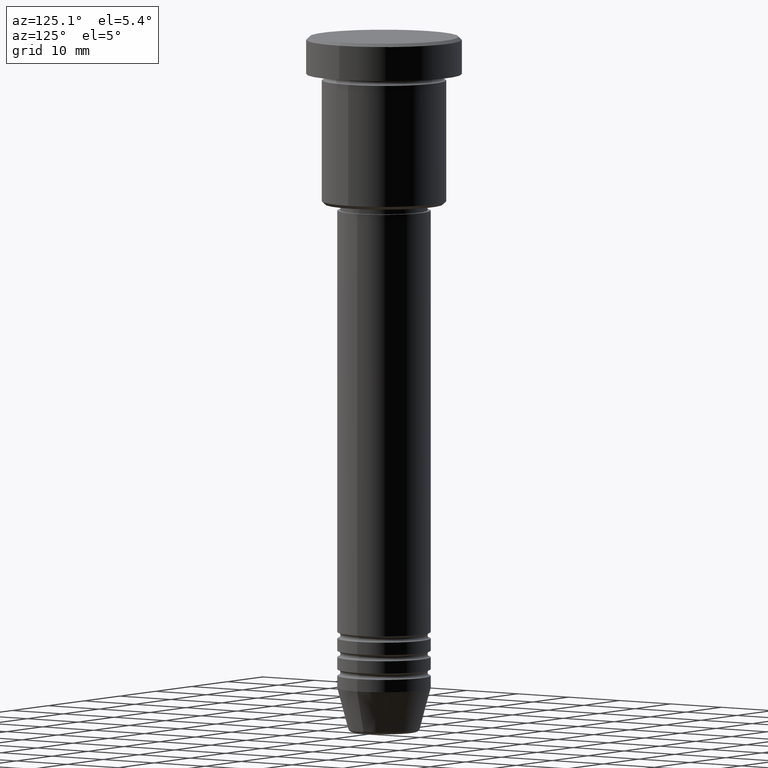
[diagram: clean part render]
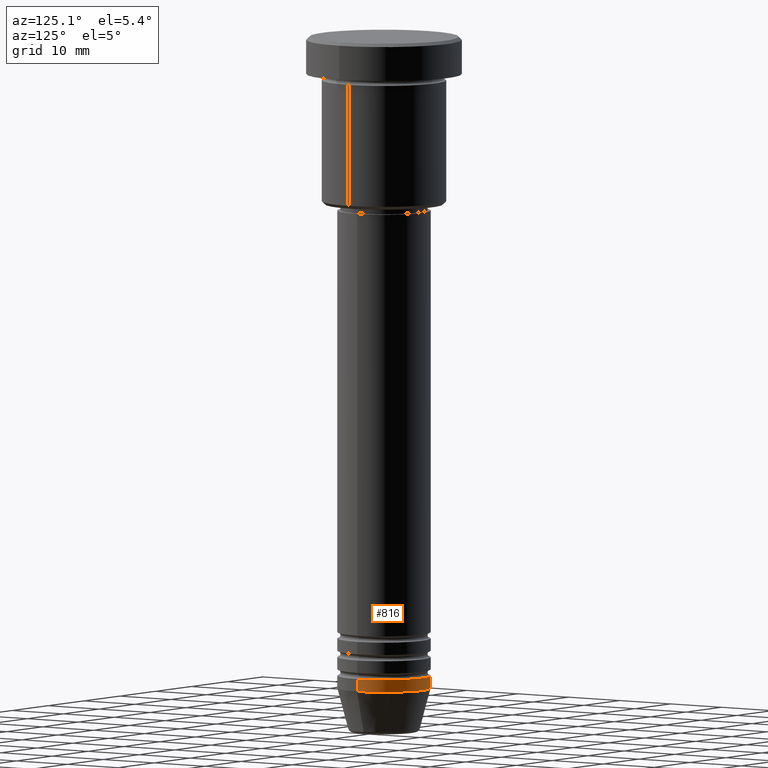
[diagram: same view with one face highlighted and labeled with its STEP entity id]
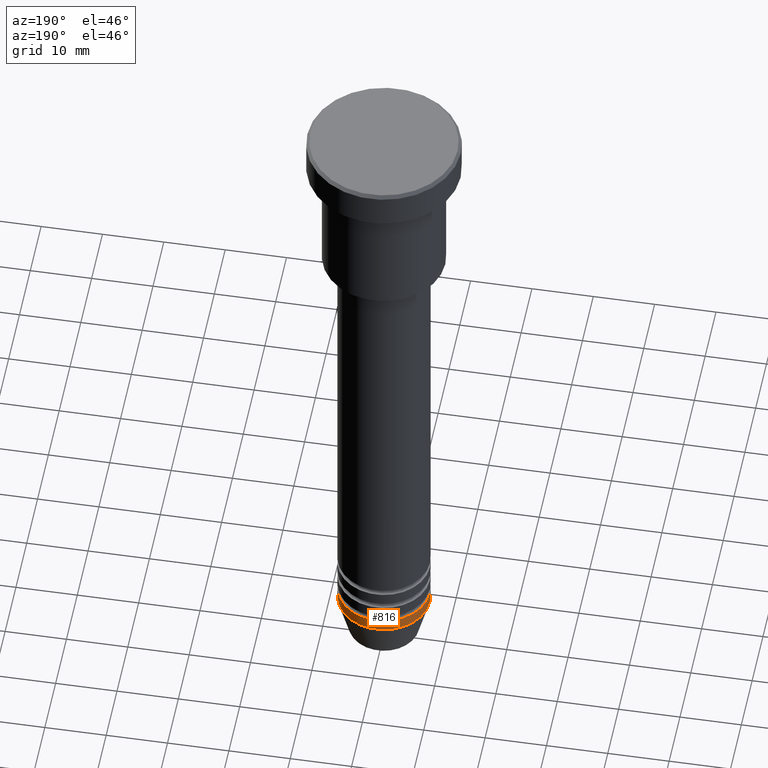
[diagram: same view with one face highlighted and labeled with its STEP entity id]
A machine part, auxiliary view. The second image highlights one B-rep face of the part: STEP entity #816.
A second angle (auxiliary view) of the same face is appended — the face is thin or edge-on in the first view.
In plain terms, the highlighted cylindrical surface (partial cylindrical patch) has radius 7.5 mm, axis along (-0, -0, 1).
Its self-contained STEP definition (entity closure, byte-faithful):
#11 = VECTOR ( 'NONE', #243, 1000.000000000000000 ) ;
#73 = EDGE_CURVE ( 'NONE', #753, #336, #268, .T. ) ;
#131 = LINE ( 'NONE', #762, #558 ) ;
#145 = ORIENTED_EDGE ( 'NONE', *, *, #362, .T. ) ;
#223 = VERTEX_POINT ( 'NONE', #497 ) ;
#243 = DIRECTION ( 'NONE',  ( -0.000000000000000000, -0.000000000000000000, 1.000000000000000000 ) ) ;
#244 = ORIENTED_EDGE ( 'NONE', *, *, #473, .F. ) ;
#268 = CIRCLE ( 'NONE', #1151, 7.500000000000000000 ) ;
#336 = VERTEX_POINT ( 'NONE', #964 ) ;
#361 = DIRECTION ( 'NONE',  ( 1.000000000000000000, 0.000000000000000000, 0.000000000000000000 ) ) ;
#362 = EDGE_CURVE ( 'NONE', #336, #223, #969, .T. ) ;
#473 = EDGE_CURVE ( 'NONE', #753, #644, #131, .T. ) ;
#497 = CARTESIAN_POINT ( 'NONE',  ( -7.500000000000000000, 9.184850993605147944E-16, -103.0000000000000142 ) ) ;
#558 = VECTOR ( 'NONE', #852, 1000.000000000000000 ) ;
#638 = DIRECTION ( 'NONE',  ( -0.000000000000000000, -0.000000000000000000, 1.000000000000000000 ) ) ;
#644 = VERTEX_POINT ( 'NONE', #1059 ) ;
#724 = EDGE_LOOP ( 'NONE', ( #898, #145, #1159, #244 ) ) ;
#753 = VERTEX_POINT ( 'NONE', #934 ) ;
#762 = CARTESIAN_POINT ( 'NONE',  ( 7.500000000000000000, 0.000000000000000000, 0.000000000000000000 ) ) ;
#813 = AXIS2_PLACEMENT_3D ( 'NONE', #999, #826, #361 ) ;
#816 = ADVANCED_FACE ( 'NONE', ( #1094 ), #899, .T. ) ;
#826 = DIRECTION ( 'NONE',  ( -0.000000000000000000, -0.000000000000000000, 1.000000000000000000 ) ) ;
#828 = EDGE_CURVE ( 'NONE', #644, #223, #986, .T. ) ;
#852 = DIRECTION ( 'NONE',  ( -0.000000000000000000, -0.000000000000000000, 1.000000000000000000 ) ) ;
#898 = ORIENTED_EDGE ( 'NONE', *, *, #73, .T. ) ;
#899 = CYLINDRICAL_SURFACE ( 'NONE', #1117, 7.500000000000000000 ) ;
#915 = CARTESIAN_POINT ( 'NONE',  ( 0.000000000000000000, 0.000000000000000000, 0.000000000000000000 ) ) ;
#917 = DIRECTION ( 'NONE',  ( 1.000000000000000000, 0.000000000000000000, 0.000000000000000000 ) ) ;
#934 = CARTESIAN_POINT ( 'NONE',  ( 7.500000000000000000, 0.000000000000000000, -105.0000000000000142 ) ) ;
#964 = CARTESIAN_POINT ( 'NONE',  ( -7.500000000000000000, 9.184850993605147944E-16, -105.0000000000000142 ) ) ;
#969 = LINE ( 'NONE', #1071, #11 ) ;
#986 = CIRCLE ( 'NONE', #813, 7.500000000000000000 ) ;
#993 = DIRECTION ( 'NONE',  ( 1.000000000000000000, 0.000000000000000000, 0.000000000000000000 ) ) ;
#999 = CARTESIAN_POINT ( 'NONE',  ( 0.000000000000000000, 0.000000000000000000, -103.0000000000000142 ) ) ;
#1001 = CARTESIAN_POINT ( 'NONE',  ( 0.000000000000000000, 0.000000000000000000, -105.0000000000000142 ) ) ;
#1014 = DIRECTION ( 'NONE',  ( -0.000000000000000000, -0.000000000000000000, 1.000000000000000000 ) ) ;
#1059 = CARTESIAN_POINT ( 'NONE',  ( 7.500000000000000000, 0.000000000000000000, -103.0000000000000142 ) ) ;
#1071 = CARTESIAN_POINT ( 'NONE',  ( -7.500000000000000000, 9.184850993605147944E-16, 0.000000000000000000 ) ) ;
#1094 = FACE_OUTER_BOUND ( 'NONE', #724, .T. ) ;
#1117 = AXIS2_PLACEMENT_3D ( 'NONE', #915, #1014, #993 ) ;
#1151 = AXIS2_PLACEMENT_3D ( 'NONE', #1001, #638, #917 ) ;
#1159 = ORIENTED_EDGE ( 'NONE', *, *, #828, .F. ) ;